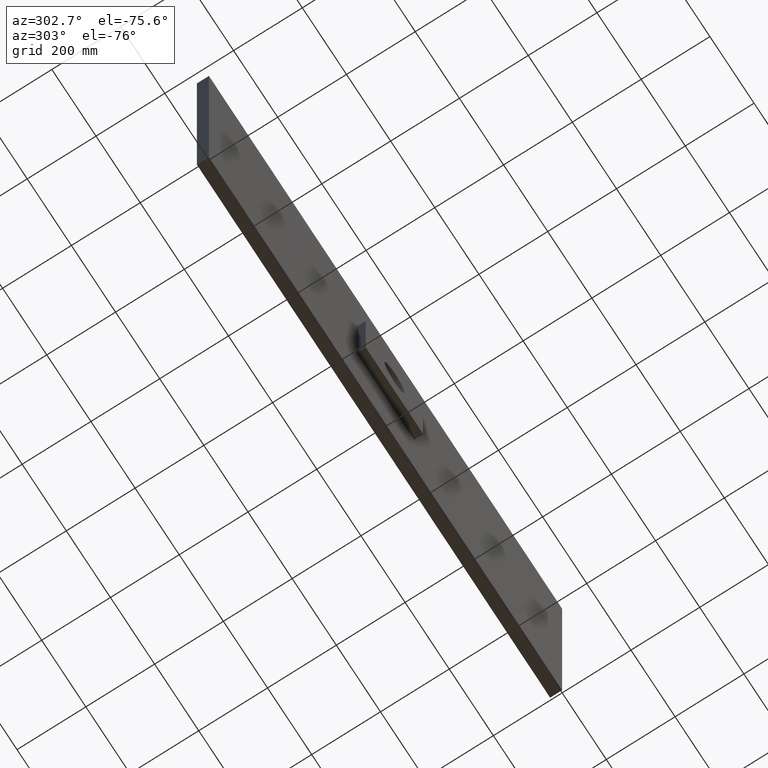
[diagram: clean part render]
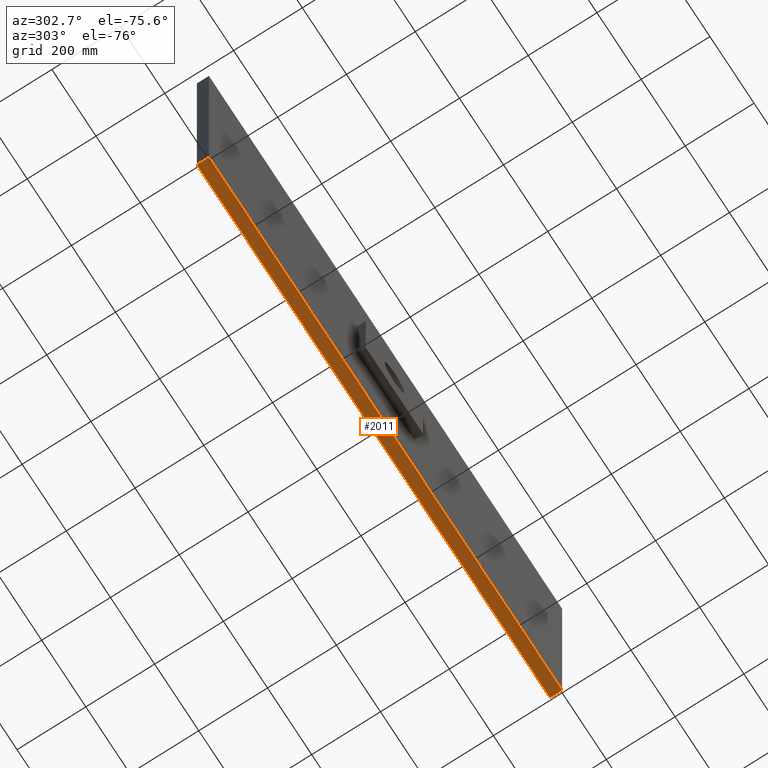
[diagram: same view with one face highlighted and labeled with its STEP entity id]
A machine part, auxiliary view. The second image highlights one B-rep face of the part: STEP entity #2011.
In plain terms, the highlighted planar face has unit normal (0, 0, 1).
Its self-contained STEP definition (entity closure, byte-faithful):
#147 = CARTESIAN_POINT ( 'NONE',  ( -800.0000000000001100, 35.00000000000000000, -399.9999999999999400 ) ) ;
#287 = LINE ( 'NONE', #2741, #600 ) ;
#481 = DIRECTION ( 'NONE',  ( 1.000000000000000000, 0.0000000000000000000, -0.0000000000000000000 ) ) ;
#504 = DIRECTION ( 'NONE',  ( -0.0000000000000000000, -1.000000000000000000, -0.0000000000000000000 ) ) ;
#505 = VERTEX_POINT ( 'NONE', #2886 ) ;
#600 = VECTOR ( 'NONE', #2713, 1000.000000000000000 ) ;
#622 = PLANE ( 'NONE',  #2982 ) ;
#658 = CARTESIAN_POINT ( 'NONE',  ( 799.9999999999998900, 35.00000000000000000, -399.9999999999999400 ) ) ;
#817 = EDGE_CURVE ( 'NONE', #2450, #2446, #1750, .T. ) ;
#861 = EDGE_CURVE ( 'NONE', #895, #2450, #1492, .T. ) ;
#895 = VERTEX_POINT ( 'NONE', #2660 ) ;
#993 = CARTESIAN_POINT ( 'NONE',  ( -800.0000000000001100, 35.00000000000000000, -399.9999999999999400 ) ) ;
#1033 = DIRECTION ( 'NONE',  ( 0.0000000000000000000, 0.0000000000000000000, 1.000000000000000000 ) ) ;
#1430 = ORIENTED_EDGE ( 'NONE', *, *, #817, .F. ) ;
#1492 = LINE ( 'NONE', #1697, #1759 ) ;
#1512 = EDGE_CURVE ( 'NONE', #505, #2446, #287, .T. ) ;
#1577 = DIRECTION ( 'NONE',  ( -0.0000000000000000000, -1.000000000000000000, -0.0000000000000000000 ) ) ;
#1697 = CARTESIAN_POINT ( 'NONE',  ( -800.0000000000001100, 35.00000000000000000, -399.9999999999999400 ) ) ;
#1750 = LINE ( 'NONE', #147, #1763 ) ;
#1756 = DIRECTION ( 'NONE',  ( -1.000000000000000000, -0.0000000000000000000, -0.0000000000000000000 ) ) ;
#1759 = VECTOR ( 'NONE', #1756, 1000.000000000000000 ) ;
#1763 = VECTOR ( 'NONE', #504, 1000.000000000000000 ) ;
#1764 = CARTESIAN_POINT ( 'NONE',  ( -800.0000000000001100, 35.00000000000000000, -399.9999999999999400 ) ) ;
#1771 = EDGE_LOOP ( 'NONE', ( #2502, #1430, #2329, #2457 ) ) ;
#1792 = FACE_OUTER_BOUND ( 'NONE', #1771, .T. ) ;
#1876 = EDGE_CURVE ( 'NONE', #895, #505, #2070, .T. ) ;
#2011 = ADVANCED_FACE ( 'NONE', ( #1792 ), #622, .F. ) ;
#2070 = LINE ( 'NONE', #658, #2522 ) ;
#2277 = CARTESIAN_POINT ( 'NONE',  ( -800.0000000000001100, 0.0000000000000000000, -399.9999999999999400 ) ) ;
#2329 = ORIENTED_EDGE ( 'NONE', *, *, #861, .F. ) ;
#2446 = VERTEX_POINT ( 'NONE', #2277 ) ;
#2450 = VERTEX_POINT ( 'NONE', #1764 ) ;
#2457 = ORIENTED_EDGE ( 'NONE', *, *, #1876, .T. ) ;
#2502 = ORIENTED_EDGE ( 'NONE', *, *, #1512, .T. ) ;
#2522 = VECTOR ( 'NONE', #1577, 1000.000000000000000 ) ;
#2660 = CARTESIAN_POINT ( 'NONE',  ( 799.9999999999998900, 35.00000000000000000, -399.9999999999999400 ) ) ;
#2713 = DIRECTION ( 'NONE',  ( -1.000000000000000000, -0.0000000000000000000, -0.0000000000000000000 ) ) ;
#2741 = CARTESIAN_POINT ( 'NONE',  ( -800.0000000000001100, 0.0000000000000000000, -399.9999999999999400 ) ) ;
#2886 = CARTESIAN_POINT ( 'NONE',  ( 799.9999999999998900, 0.0000000000000000000, -399.9999999999999400 ) ) ;
#2982 = AXIS2_PLACEMENT_3D ( 'NONE', #993, #1033, #481 ) ;